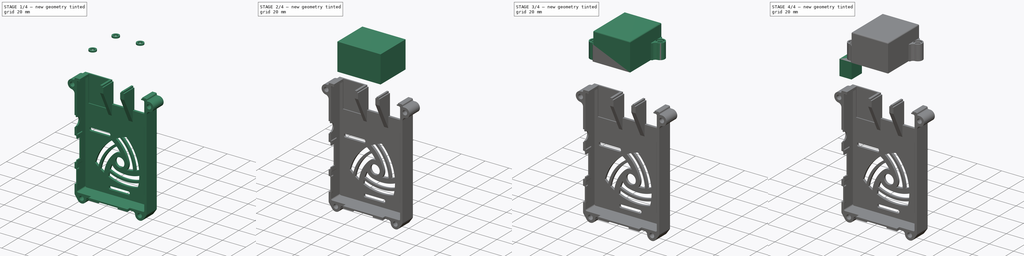
[diagram: build sequence overview — one tinted view per stage of 4, left to right]
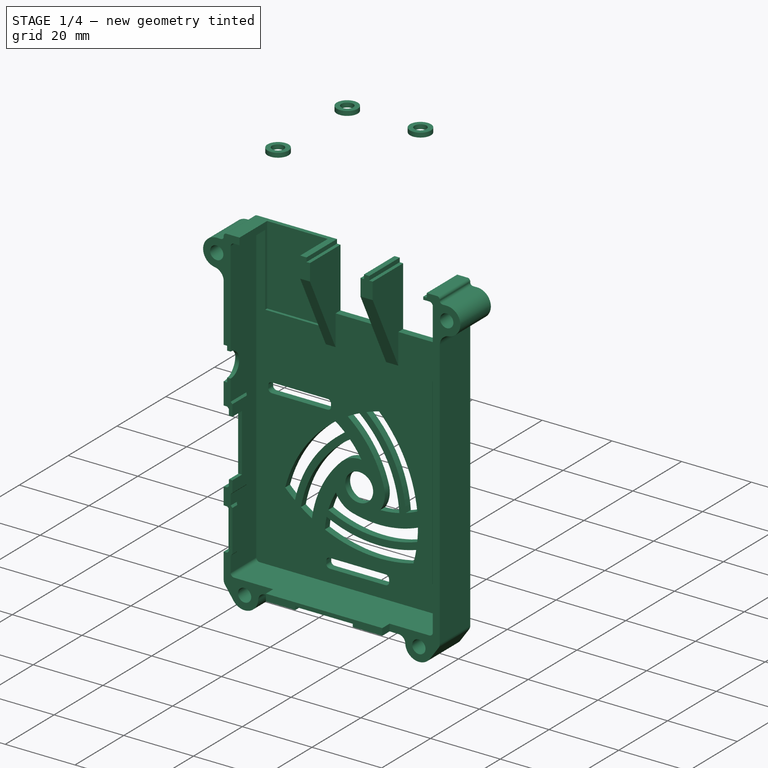
[diagram: stage 1 of 4 — iso view after this stage's code; geometry added in this stage tinted green]
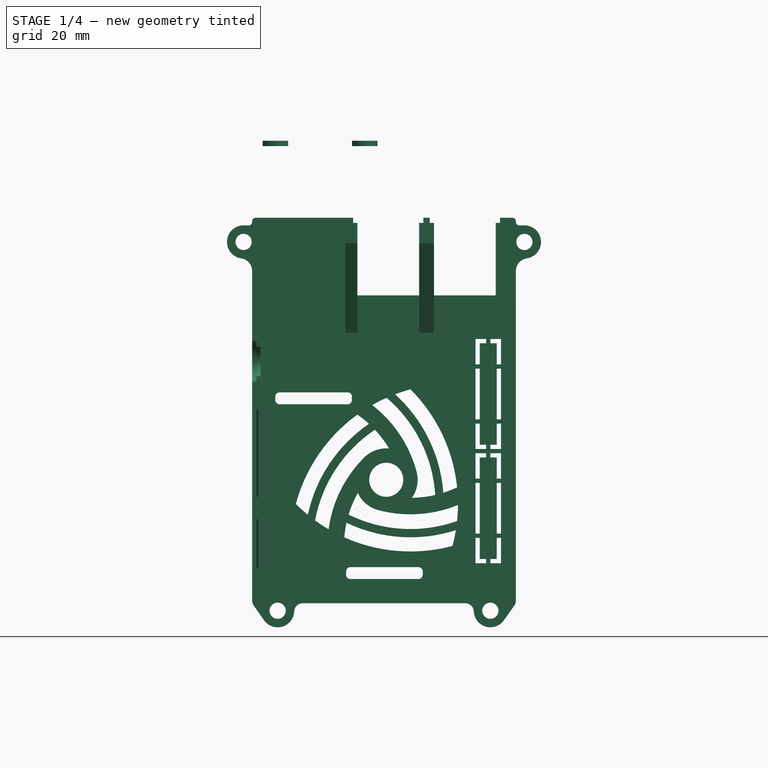
[diagram: stage 1 of 4 — front view after this stage's code; geometry added in this stage tinted green]
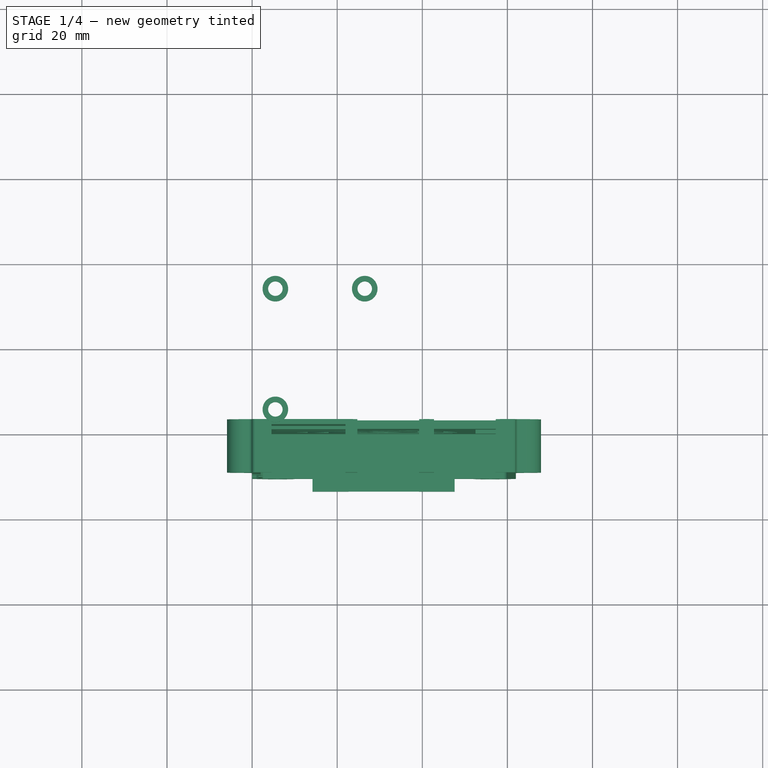
[diagram: stage 1 of 4 — top view after this stage's code; geometry added in this stage tinted green]
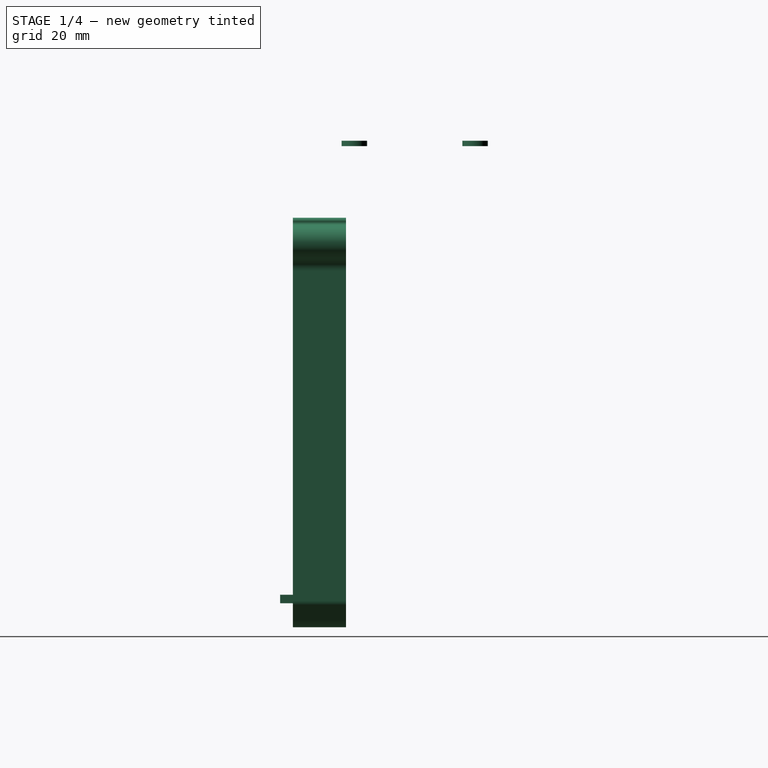
[diagram: stage 1 of 4 — right view after this stage's code; geometry added in this stage tinted green]
FCSTD DOCUMENT  (FreeCAD 1.0R39109 (Git))
Label: rpi_top
License: All rights reserved
LicenseURL: https://en.wikipedia.org/wiki/All_rights_reserved
objects: PartDesign::Body×4, Part::Feature×3, Part::Box×3, Part::Common×2, App::Part×2, PartDesign::FeatureBase×2, Sketcher::SketchObject×2, PartDesign::Pad×2, PartDesign::ShapeBinder×2, Part::FeaturePython×1, Part::Fillet×1, App::VarSet×1, PartDesign::Hole×1
note: 33 computed .brp shape members not serialized (recipe doc carries the construction recipe); baked Part::Feature solids carry a one-line shape summary decoded from their .brp

FEATURE [Sketcher::SketchObject] Sketch001
  ArcFitTolerance = 1e-06
  AttachmentOffset = pos=(0,0,12.446) rot=(0,0,1;0rad)
  AttachmentSupport = -> [XY_Plane004]
  FullyConstrained = true
  MakeInternals = false
  MapMode = 5
  Placement = pos=(0,0,12.446) rot=(0,0,1;0rad)
  expr: .AttachmentOffset.Base.z = <<Variables>>.rpi_height
  expr: .Constraints.distance_from_y = <<Variables>>.wall_thickness * 2 + (<<Relay body>>.Constraints.width - <<Variables>>.wall_thickness * 2 - .Constraints.width) / 2
  expr: .Constraints.mounting_hole_distance_from_edge = <<Variables>>.relay_screw_distance_from_edge
  expr: .Constraints.pad_diameter = <<Variables>>.mounting_hole_diameter + .Constraints.distance_from_y
  expr: Constraints[12] = <<Variables>>.wall_thickness + (<<Relay body>>.Constraints.length - <<Variables>>.wall_thickness * 2 - .Constraints.height) / 2
  expr: Constraints[14] = <<Variables>>.relay_screw_distance_from_edge
  expr: Constraints[17] = <<Variables>>.relay_screw_distance_from_edge
  expr: Constraints[18] = <<Variables>>.relay_screw_distance_from_edge
  sketch-geometry (8):
    g0: LineSegment [constr] StartX=2.889 StartY=1.381 StartZ=0 EndX=29.051 EndY=1.381 EndZ=0
    g1: LineSegment [constr] StartX=29.051 StartY=1.381 StartZ=0 EndX=29.051 EndY=34.909 EndZ=0
    g2: LineSegment [constr] StartX=29.051 StartY=34.909 StartZ=0 EndX=2.889 EndY=34.909 EndZ=0
    g3: LineSegment [constr] StartX=2.889 StartY=34.909 StartZ=0 EndX=2.889 EndY=1.381 EndZ=0
    g4: GeomPoint [constr] X=15.97 Y=18.145 Z=0
    g5: Circle CenterX=5.4671 CenterY=3.9591 CenterZ=0 NormalX=0 NormalY=0 NormalZ=1 AngleXU=0 Radius=3.0066
    g6: Circle CenterX=26.4729 CenterY=32.3309 CenterZ=0 NormalX=0 NormalY=0 NormalZ=1 AngleXU=0 Radius=3.0066
    g7: Circle CenterX=5.4671 CenterY=32.3309 CenterZ=0 NormalX=0 NormalY=0 NormalZ=1 AngleXU=0 Radius=3.0066
  constraints (21):
    c: Coincident(g0,g1)
    c: Coincident(g1,g2)
    c: Coincident(g2,g3)
    c: Coincident(g3,g0)
    c: Horizontal(g0)
    c: Horizontal(g2)
    c: Vertical(g1)
    c: Vertical(g3)
    c: Symmetric(g2,g0,g4)
    c: Distance(g1,g3) = 26.162  'width'
    c: Distance(g0,g2) = 33.528  'height'
    c: DistanceX(g-1,g0) = 2.889  'distance_from_y'
    c: DistanceY(g-1,g0) = 1.381
    c: DistanceX(g0,g5) = 2.5781  'mounting_hole_distance_from_edge'
    c: DistanceY(g0,g5) = 2.5781
    c: Symmetric(g5,g6,g4)
    c: Diameter(g7) = 6.0132  'pad_diameter'
    c: DistanceX(g2,g7) = 2.5781
    c: DistanceY(g7,g2) = 2.5781
    c: Equal(g5,g6)
    c: Equal(g7,g5)
FEATURE [App::VarSet] VarSet  label="Variables"
  mounting_hole_diameter = 3.1242
  mounting_screw_height = 1.27
  mounting_screw_size = 0
  relay_screw_distance_from_edge = 2.5781
  rpi_height = 12.446
  wall_thickness = 0.999998
  expr: relay_screw_distance_from_edge = 40 thou + mounting_hole_diameter / 2
FEATURE [PartDesign::Pad] Pad001
  Direction = (0,0,1)
  Length = 1.27
  Length2 = 10
  Profile = -> Sketch001
  ReferenceAxis = -> Sketch001 [N_Axis]
  Refine = true
  Suppressed = false
  Type = 0
  expr: Length = <<Variables>>.mounting_screw_height
FEATURE [PartDesign::ShapeBinder] ShapeBinder
  Support = -> [Pad001]
  TraceSupport = false
FEATURE [PartDesign::Hole] Hole
  BaseFeature = -> Pad001
  CustomThreadClearance = 0
  Depth = 88.3728
  DepthType = 1
  Diameter = 3.4
  DrillForDepth = false
  DrillPoint = 1
  DrillPointAngle = 118
  HoleCutCountersinkAngle = 90
  HoleCutCustomValues = false
  HoleCutDepth = 0
  HoleCutDiameter = 3.556
  HoleCutType = 0
  ModelThread = false
  Profile = -> ShapeBinder
  Refine = true
  Suppressed = false
  Tapered = false
  TaperedAngle = 90
  ThreadClass = 0
  ThreadDepth = 88.3728
  ThreadDepthType = 0
  ThreadDirection = 0
  ThreadFit = 0
  ThreadSize = 9
  ThreadType = 1
  Threaded = false
  UseCustomThreadClearance = false
FEATURE [PartDesign::Body] Body002  label="Relay mounting holes"
  AllowCompound = true
  Group = -> [Sketch001,Pad001,ShapeBinder,Hole]
  Origin = -> Origin004
  Tip = -> Hole
FEATURE [PartDesign::FeatureBase] BaseFeature
  BaseFeature = -> Part__Feature001
  Suppressed = false
FEATURE [PartDesign::ShapeBinder] ShapeBinder001
  Support = -> [Hole]
  TraceSupport = false
FEATURE [PartDesign::Body] Body003  label="Body"
  AllowCompound = false
  BaseFeature = -> Part__Feature001
  Group = -> [BaseFeature,ShapeBinder001]
  Origin = -> Origin005
  Placement = pos=(0,-4.318,10.414) rot=(-1,0,0;4.71239rad)
  Tip = -> BaseFeature
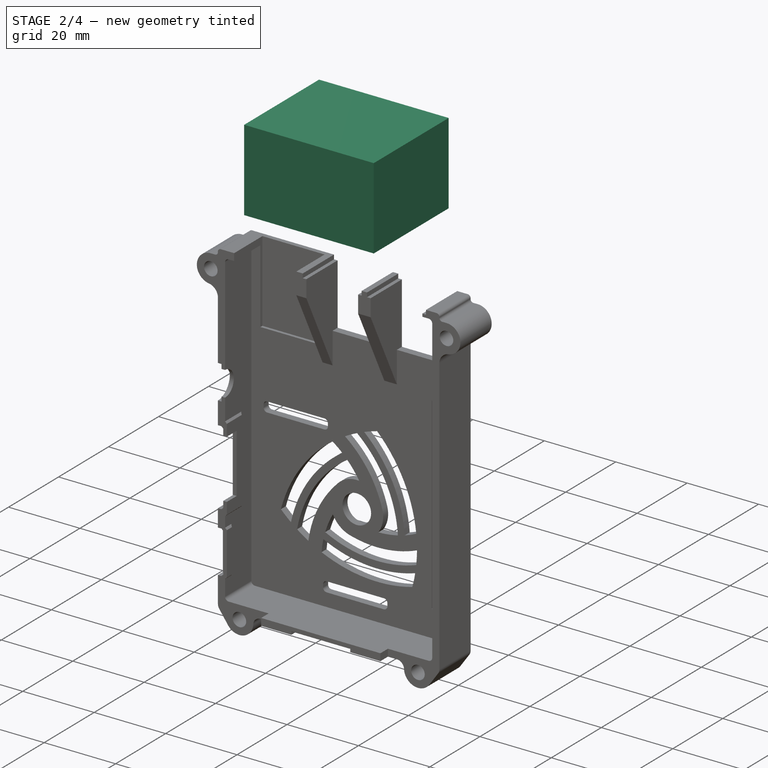
[diagram: stage 2 of 4 — iso view after this stage's code; geometry added in this stage tinted green]
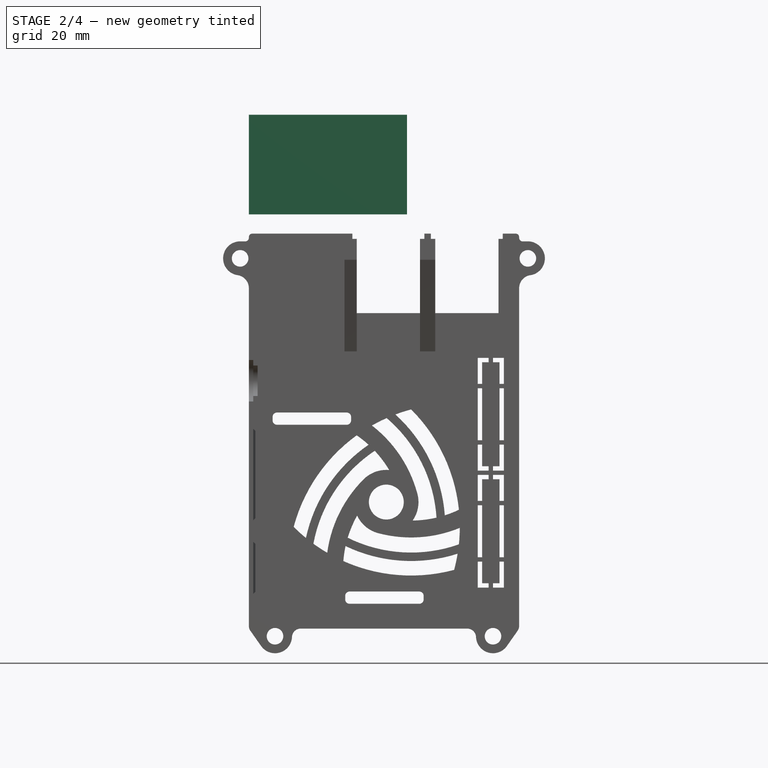
[diagram: stage 2 of 4 — front view after this stage's code; geometry added in this stage tinted green]
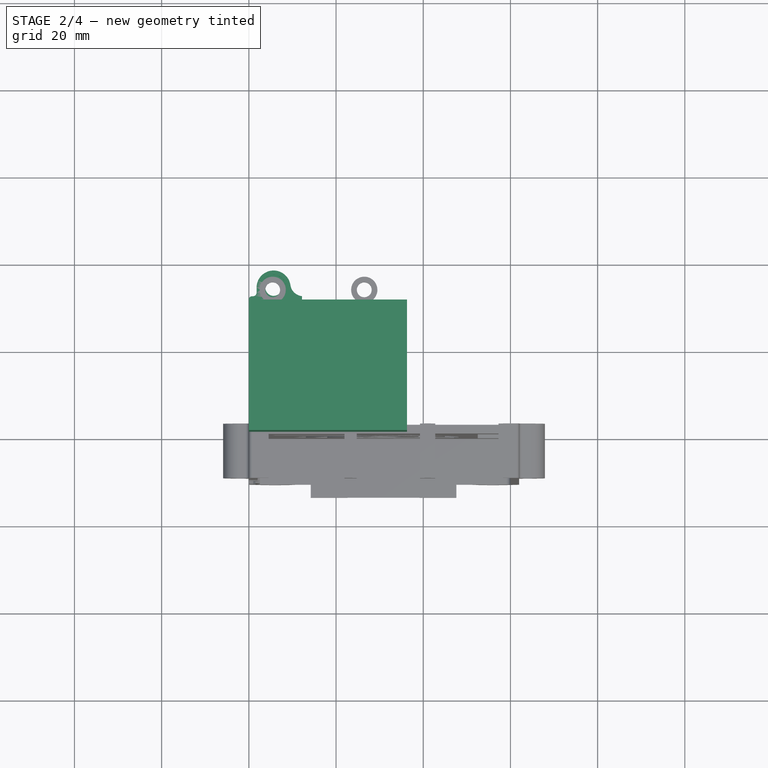
[diagram: stage 2 of 4 — top view after this stage's code; geometry added in this stage tinted green]
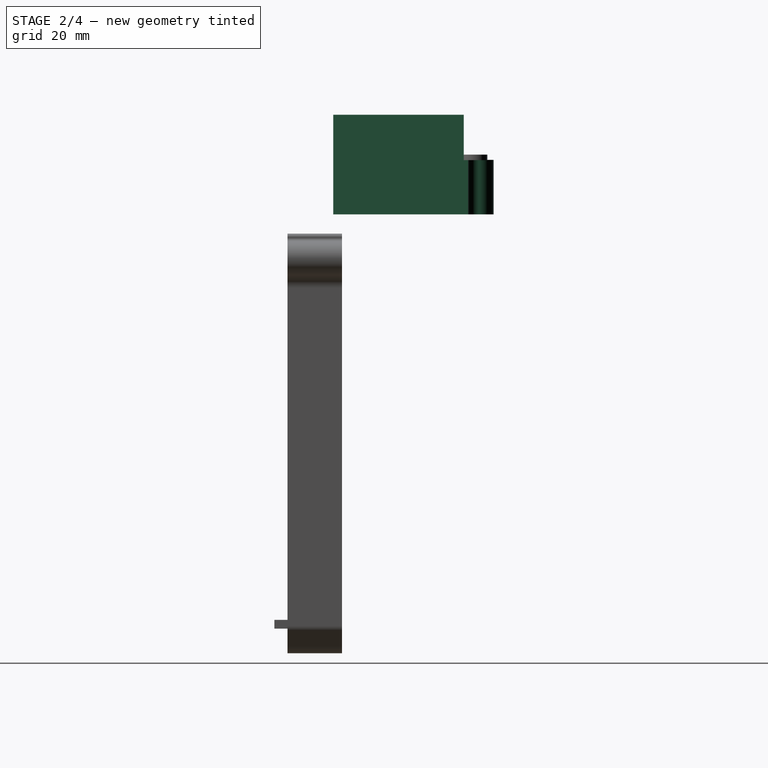
[diagram: stage 2 of 4 — right view after this stage's code; geometry added in this stage tinted green]
FEATURE [Part::Feature] Part__Feature001  label="RPI2-TOP001"
  Placement = pos=(0,-4.4069,10.5029) rot=(-1,0,0;4.71239rad)
  shape: bbox 73.8 x 96.25 x 15.5 mm, 216 faces (baked)
FEATURE [Part::Box] Box002  label="Cube002"
  AttacherType = Attacher::AttachEngine3D
  Height = 12.7
  Length = 9.906
  Placement = pos=(-8.9662,0,0) rot=(0,0,1;0rad)
  Width = 12.192
  expr: .Placement.Base.x = -Length + 37 thou
FEATURE [Part::Feature] Part__Feature002  label="RPI2-TOP002"
  Placement = pos=(0,-4.4069,10.5029) rot=(-1,0,0;4.71239rad)
  shape: bbox 73.8 x 96.25 x 15.5 mm, 216 faces (baked)
FEATURE [Part::Common] Common001  label="Screw hole"
  Base = -> Part__Feature002
  Placement = pos=(0,30.8798,0) rot=(0,0,1;-1.5708rad)
  Refine = true
  Tool = -> Box002
  expr: .Placement.Base.y = Sketch.Constraints.width + 37 thou
FEATURE [PartDesign::Body] Body001  label="Cloned screw hole"
  AllowCompound = false
  Group = -> [Clone]
  Origin = -> Origin003
  Placement = pos=(36.29,-0.9398,0) rot=(0,0,1;1.5708rad)
  Tip = -> Clone
  expr: .Placement.Base.x = Sketch.Constraints.length
FEATURE [Sketcher::SketchObject] Sketch  label="Relay body"
  ArcFitTolerance = 1e-06
  AttachmentSupport = -> [XY_Plane001]
  FullyConstrained = true
  MakeInternals = false
  MapMode = 5
  expr: .Constraints.length = 1.35 " + 39.37 * 2 thou
  expr: .Constraints.width = 1.1 " + 39.37 * 2 thou
  sketch-geometry (4):
    g0: LineSegment StartX=0 StartY=0 StartZ=0 EndX=36.29 EndY=0 EndZ=0
    g1: LineSegment StartX=36.29 StartY=0 StartZ=0 EndX=36.29 EndY=29.94 EndZ=0
    g2: LineSegment StartX=36.29 StartY=29.94 StartZ=0 EndX=0 EndY=29.94 EndZ=0
    g3: LineSegment StartX=0 StartY=29.94 StartZ=0 EndX=0 EndY=0 EndZ=0
  constraints (11):
    c: Coincident(g0,g1)
    c: Coincident(g1,g2)
    c: Coincident(g2,g3)
    c: Coincident(g3,g0)
    c: Horizontal(g0)
    c: Horizontal(g2)
    c: Vertical(g1)
    c: Vertical(g3)
    c: Distance(g1,g3) = 36.29  'length'
    c: Distance(g0,g2) = 29.94  'width'
    c: Coincident(g0,g-1)
FEATURE [PartDesign::Pad] Pad
  Direction = (0,0,1)
  Length = 22.86
  Length2 = 10
  Profile = -> Sketch
  ReferenceAxis = -> Sketch [N_Axis]
  Refine = true
  Suppressed = false
  Type = 0
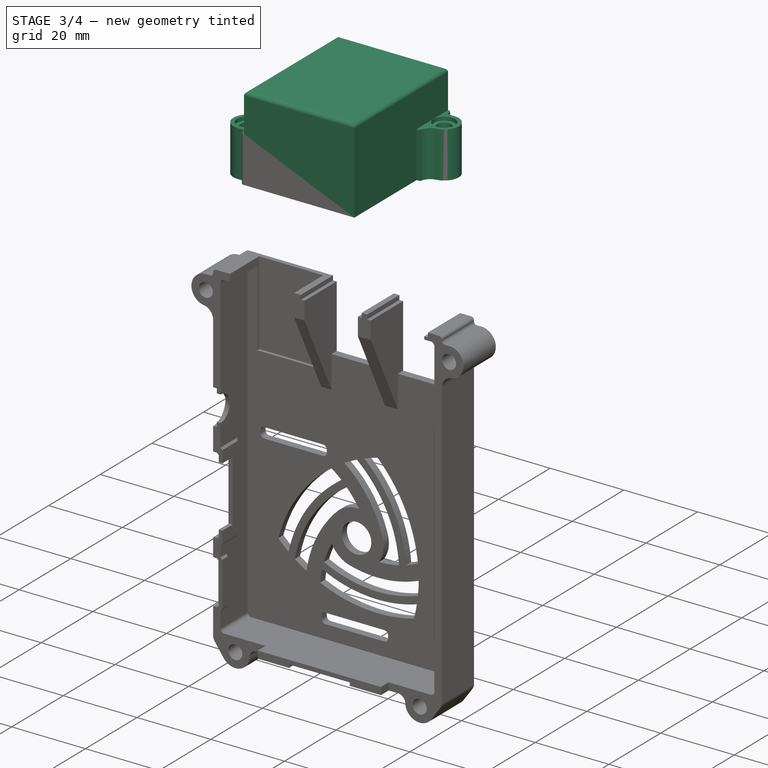
[diagram: stage 3 of 4 — iso view after this stage's code; geometry added in this stage tinted green]
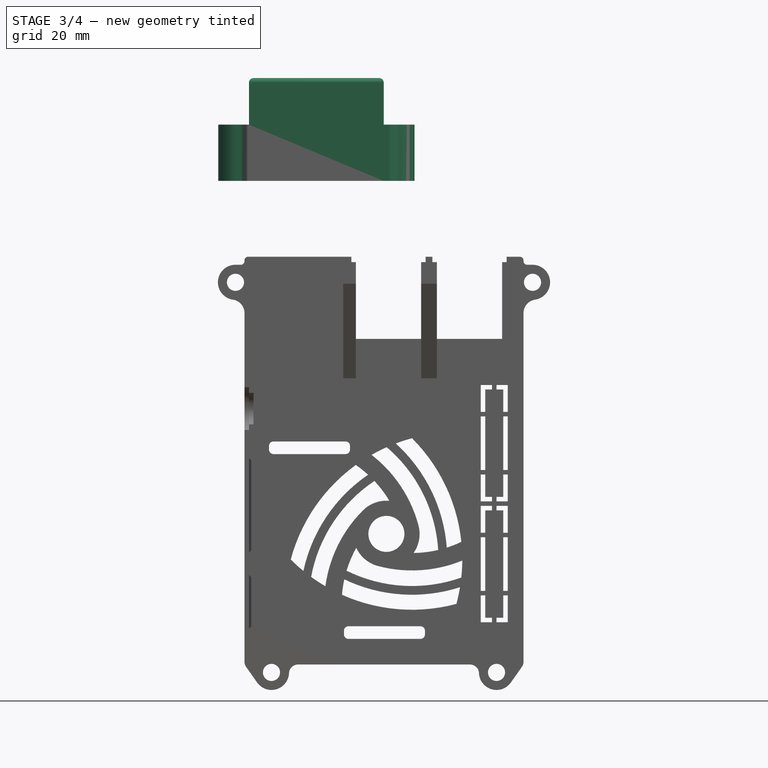
[diagram: stage 3 of 4 — front view after this stage's code; geometry added in this stage tinted green]
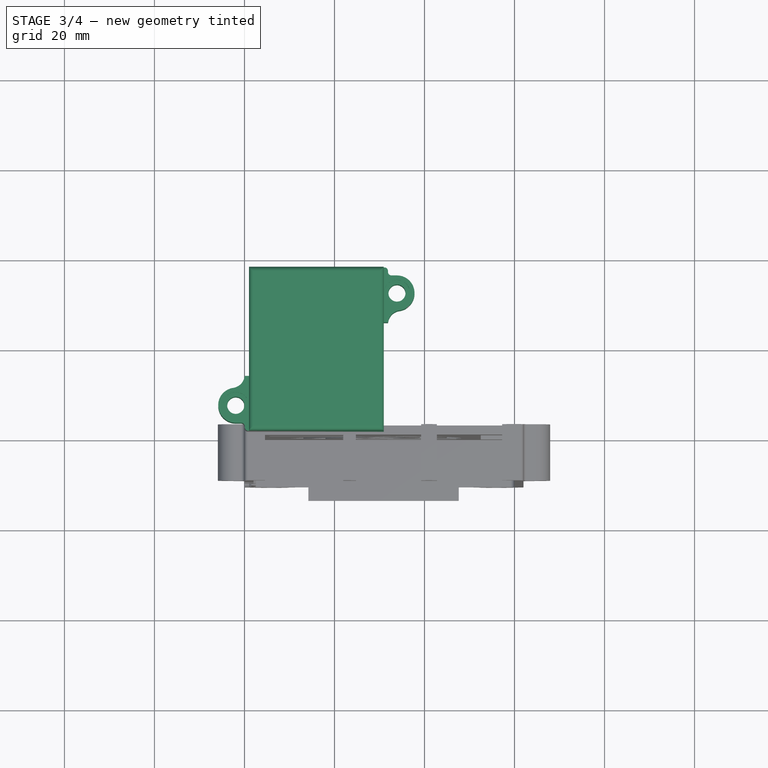
[diagram: stage 3 of 4 — top view after this stage's code; geometry added in this stage tinted green]
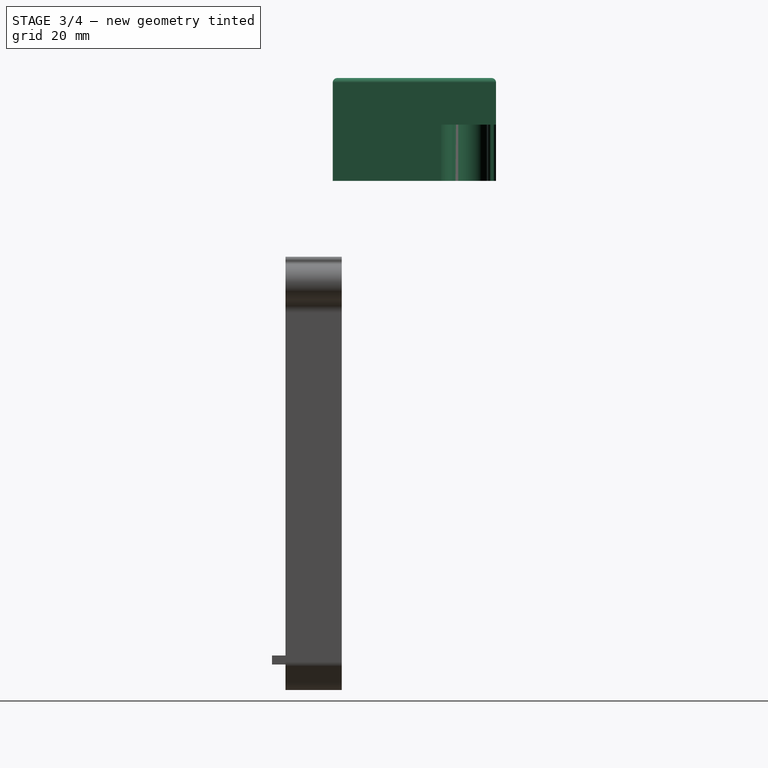
[diagram: stage 3 of 4 — right view after this stage's code; geometry added in this stage tinted green]
FEATURE [PartDesign::FeatureBase] Clone
  BaseFeature = -> Common001
  Suppressed = false
FEATURE [PartDesign::Body] Body  label="Main Body"
  AllowCompound = false
  Group = -> [Sketch,Pad]
  Origin = -> Origin001
  Tip = -> Pad
FEATURE [App::Part] Part001
  Group = -> [Box002,Part__Feature002,Common001,Body001,Body]
  Origin = -> Origin002
FEATURE [Part::FeaturePython] Connect  # WARN: FeaturePython — macro-defined, semantics opaque (R4)
  Objects = -> [Part001]
  Refine = true
  Tolerance = 0
FEATURE [Part::Fillet] Fillet  label="Relay box"
  Base = -> Connect
  EdgeLinks = -> Connect [Edge10,Edge41,Edge42,Edge43]
  Edges = 4 edges r=1: [Edge10,Edge41,Edge42,Edge43]
  Placement = pos=(30.94,0,12.446) rot=(0,0,0.033382;1.5708rad)
  expr: .Placement.Base.x = Sketch.Constraints.width + <<Variables>>.wall_thickness
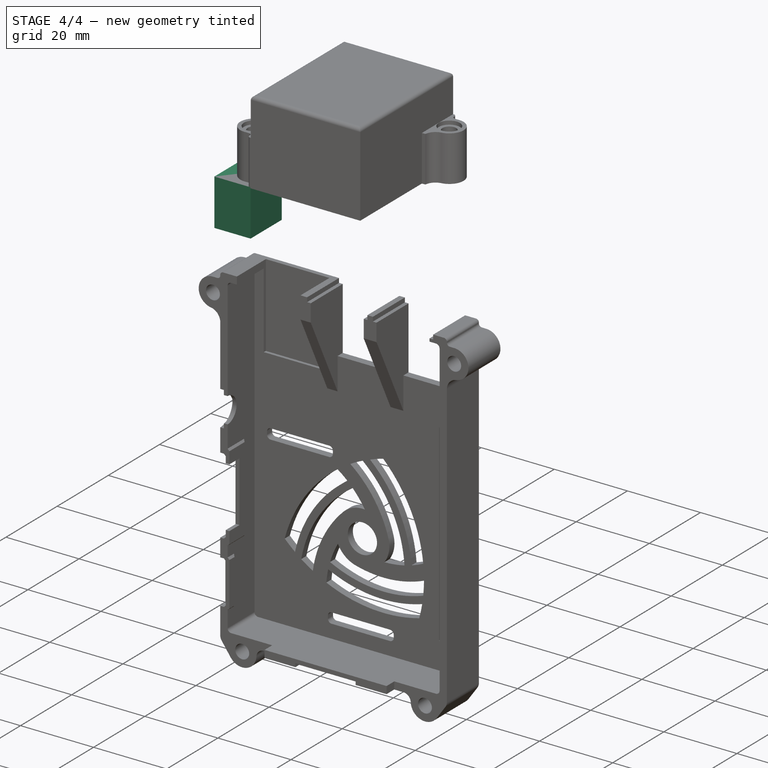
[diagram: stage 4 of 4 — iso view after this stage's code; geometry added in this stage tinted green]
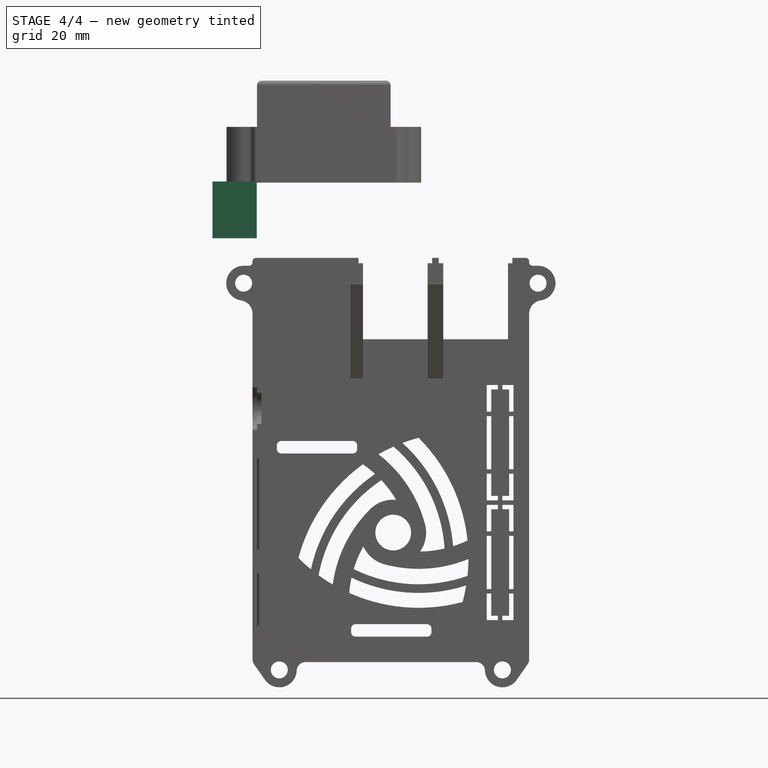
[diagram: stage 4 of 4 — front view after this stage's code; geometry added in this stage tinted green]
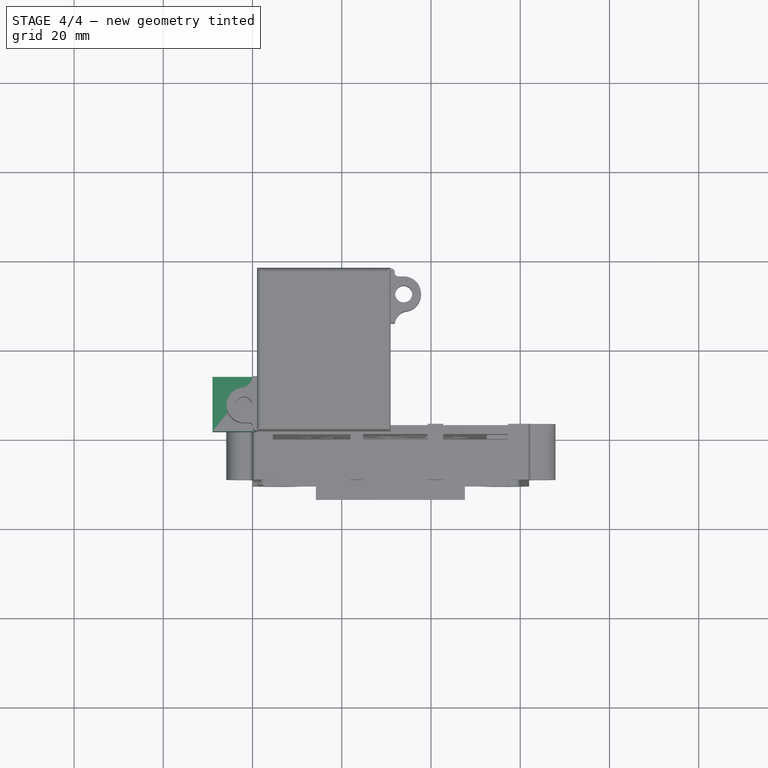
[diagram: stage 4 of 4 — top view after this stage's code; geometry added in this stage tinted green]
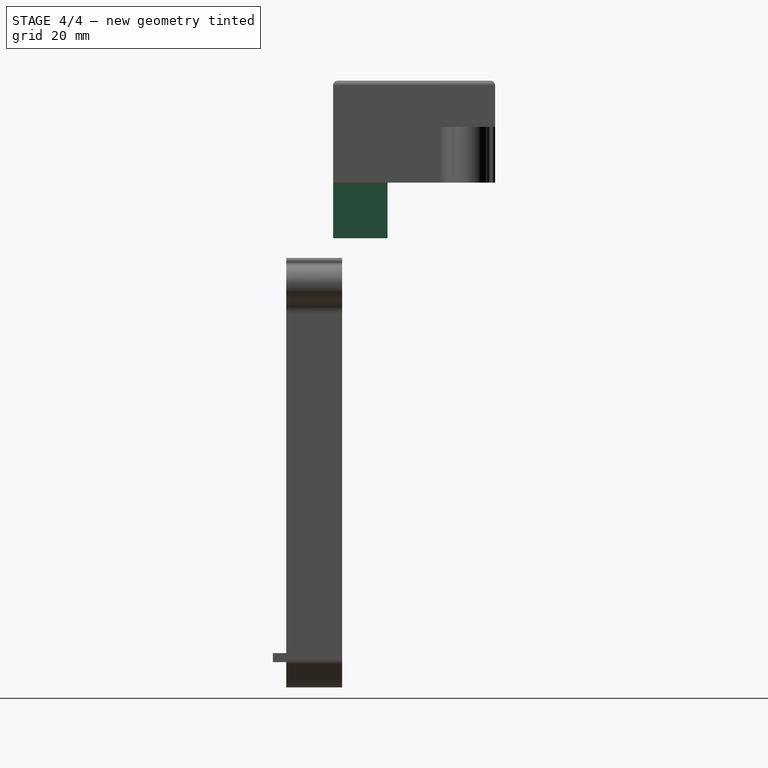
[diagram: stage 4 of 4 — right view after this stage's code; geometry added in this stage tinted green]
FEATURE [Part::Feature] Part__Feature  label="RPI2-TOP"
  Placement = pos=(0,-4.4069,10.5029) rot=(-1,0,0;4.71239rad)
  shape: bbox 73.8 x 96.25 x 15.5 mm, 216 faces (baked)
FEATURE [Part::Box] Box  label="Cube"
  AttacherType = Attacher::AttachEngine3D
  Height = 12.7
  Length = 9.906
  Placement = pos=(-8.9662,0,0) rot=(0,0,1;0rad)
  Width = 12.192
  expr: .Placement.Base.x = -Length + 37 thou
FEATURE [Part::Common] Common
  Base = -> Part__Feature
  Refine = true
  Tool = -> Box
FEATURE [App::Part] Part
  Group = -> [Part__Feature,Box,Common]
  Origin = -> Origin
FEATURE [Part::Box] Box001  label="Cube001"
  AttacherType = Attacher::AttachEngine3D
  Height = 12.7
  Length = 9.906
  Placement = pos=(-8.9662,0,0) rot=(0,0,1;0rad)
  Width = 12.192
  expr: .Placement.Base.x = -Length + 37 thou
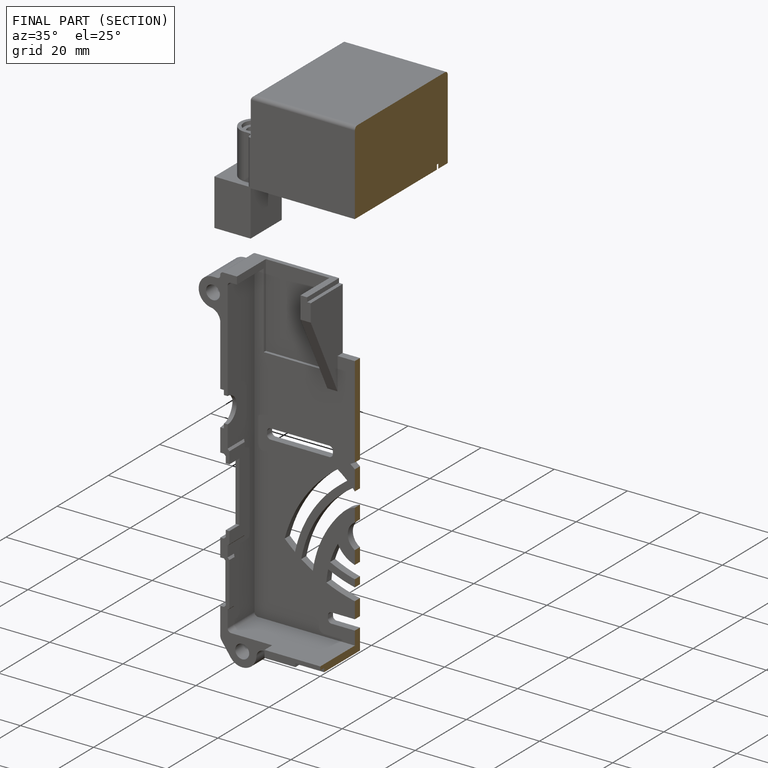
[diagram: finished part — half-section view (interior)]
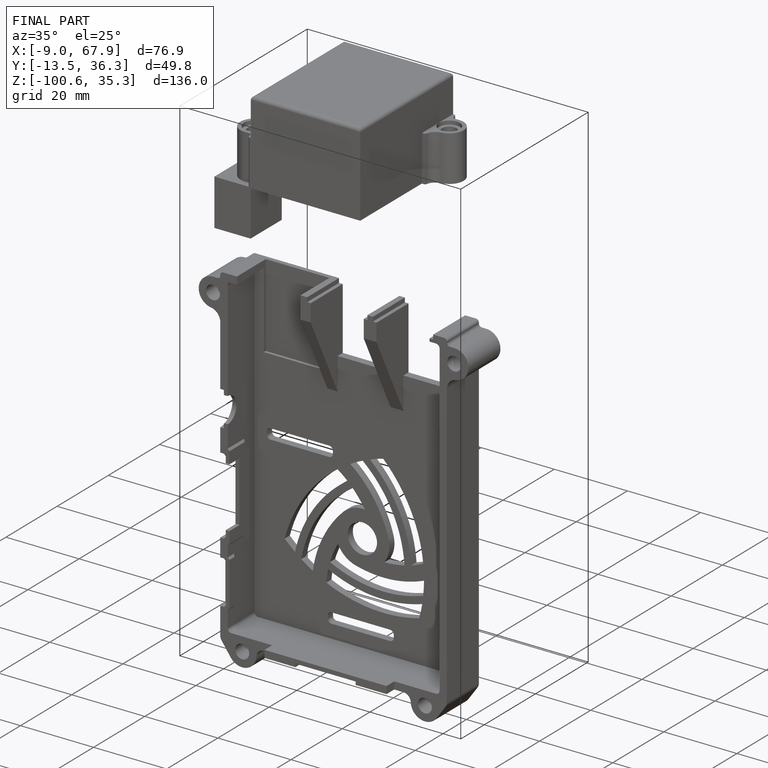
[diagram: finished part — iso view with bounding-box wireframe]
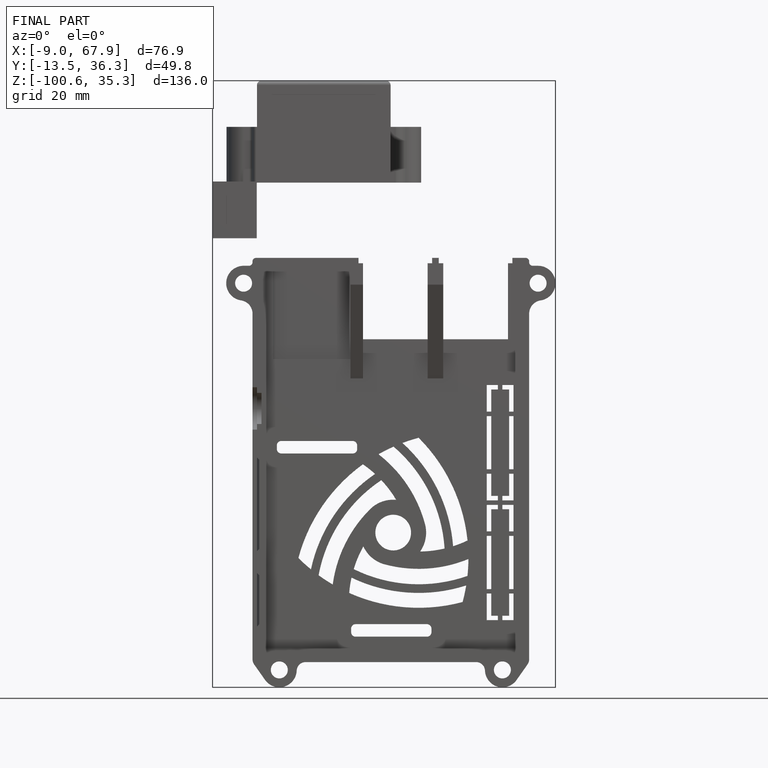
[diagram: finished part — front view with bounding-box wireframe]
